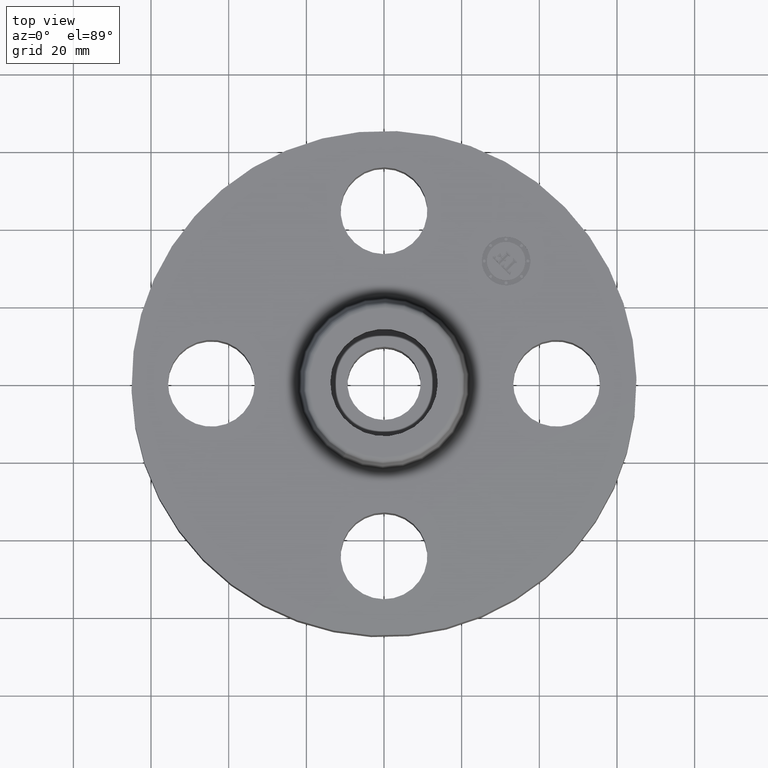
[diagram: clean part render]
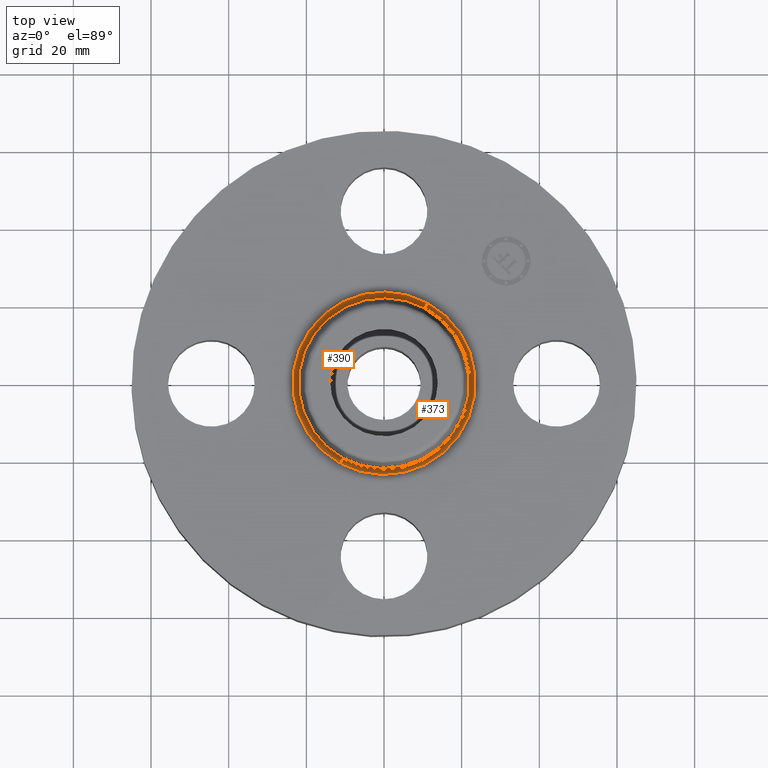
[diagram: same view with one multi-face feature highlighted, each face labeled with its STEP entity id]
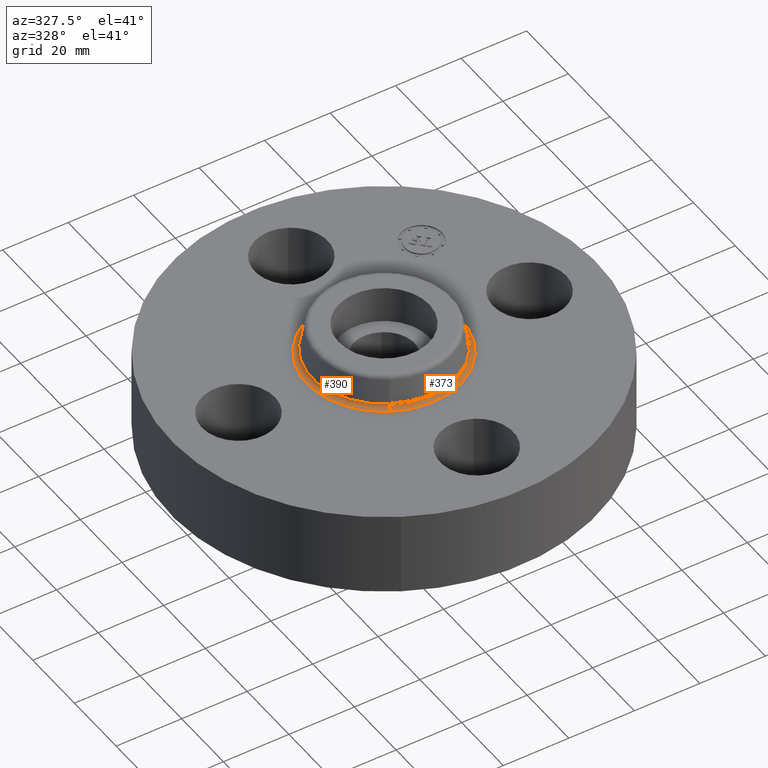
[diagram: same view with one multi-face feature highlighted, each face labeled with its STEP entity id]
A machine part, top view. The highlighted faces form ONE feature: a constant-radius fillet chain: 2 tangent blend faces with common blend radius 1.524 mm. The faces share edges in the B-rep.
A second angle (auxiliary view) of the same feature is appended — it is thin or edge-on in the first view.
Their STEP definitions:
[1] entity #373 (Torus):
#337=AXIS2_PLACEMENT_3D('Torus Axis2P3D',#334,#335,#336) ;
#341=AXIS2_PLACEMENT_3D('Circle Axis2P3D',#339,#340,$) ;
#350=AXIS2_PLACEMENT_3D('Circle Axis2P3D',#348,#349,$) ;
#357=AXIS2_PLACEMENT_3D('Circle Axis2P3D',#355,#356,$) ;
#364=AXIS2_PLACEMENT_3D('Circle Axis2P3D',#362,#363,$) ;
#334=CARTESIAN_POINT('Axis2P3D Location',(0.,0.,1.06)) ;
#339=CARTESIAN_POINT('Axis2P3D Location',(0.,0.,1.)) ;
#343=CARTESIAN_POINT('Vertex',(0.443634493838,0.812067493898,1.)) ;
#345=CARTESIAN_POINT('Vertex',(-0.443634493838,-0.812067493898,1.)) ;
#348=CARTESIAN_POINT('Axis2P3D Location',(0.443634493838,0.812067493898,1.06)) ;
#352=CARTESIAN_POINT('Vertex',(0.415305974593,0.760212487246,1.04958110934)) ;
#355=CARTESIAN_POINT('Axis2P3D Location',(0.,0.,1.04958110934)) ;
#359=CARTESIAN_POINT('Vertex',(-0.415305974593,-0.760212487246,1.04958110934)) ;
#362=CARTESIAN_POINT('Axis2P3D Location',(-0.443634493838,-0.812067493898,1.06)) ;
#335=DIRECTION('Axis2P3D Direction',(0.,0.,-0.0393700787402)) ;
#336=DIRECTION('Axis2P3D XDirection',(-0.0188750212049,-0.0345504945626,0.)) ;
#340=DIRECTION('Axis2P3D Direction',(0.,0.,-0.0393700787402)) ;
#349=DIRECTION('Axis2P3D Direction',(-0.0345504945626,0.0188750212049,0.)) ;
#356=DIRECTION('Axis2P3D Direction',(0.,0.,-0.0393700787402)) ;
#363=DIRECTION('Axis2P3D Direction',(0.0345504945626,-0.0188750212049,0.)) ;
#368=ORIENTED_EDGE('',*,*,#347,.F.) ;
#369=ORIENTED_EDGE('',*,*,#354,.T.) ;
#370=ORIENTED_EDGE('',*,*,#361,.T.) ;
#371=ORIENTED_EDGE('',*,*,#366,.F.) ;
#373=ADVANCED_FACE('PartBody',(#372),#338,.F.) ;
#342=CIRCLE('generated circle',#341,0.925345977874) ;
#351=CIRCLE('generated circle',#350,0.0600000000002) ;
#358=CIRCLE('generated circle',#357,0.866257512693) ;
#365=CIRCLE('generated circle',#364,0.0600000000002) ;
#338=TOROIDAL_SURFACE('homeo Torus',#337,0.925345977874,0.0600000000002) ;
#347=EDGE_CURVE('',#344,#346,#342,.T.) ;
#354=EDGE_CURVE('',#344,#353,#351,.T.) ;
#361=EDGE_CURVE('',#353,#360,#358,.T.) ;
#366=EDGE_CURVE('',#346,#360,#365,.T.) ;
#367=EDGE_LOOP('',(#368,#369,#370,#371)) ;
#372=FACE_OUTER_BOUND('',#367,.T.) ;
#344=VERTEX_POINT('',#343) ;
#346=VERTEX_POINT('',#345) ;
#353=VERTEX_POINT('',#352) ;
#360=VERTEX_POINT('',#359) ;
[2] entity #390 (Torus):
#337=AXIS2_PLACEMENT_3D('Torus Axis2P3D',#334,#335,#336) ;
#350=AXIS2_PLACEMENT_3D('Circle Axis2P3D',#348,#349,$) ;
#364=AXIS2_PLACEMENT_3D('Circle Axis2P3D',#362,#363,$) ;
#376=AXIS2_PLACEMENT_3D('Circle Axis2P3D',#374,#375,$) ;
#381=AXIS2_PLACEMENT_3D('Circle Axis2P3D',#379,#380,$) ;
#334=CARTESIAN_POINT('Axis2P3D Location',(0.,0.,1.06)) ;
#343=CARTESIAN_POINT('Vertex',(0.443634493838,0.812067493898,1.)) ;
#345=CARTESIAN_POINT('Vertex',(-0.443634493838,-0.812067493898,1.)) ;
#348=CARTESIAN_POINT('Axis2P3D Location',(0.443634493838,0.812067493898,1.06)) ;
#352=CARTESIAN_POINT('Vertex',(0.415305974593,0.760212487246,1.04958110934)) ;
#359=CARTESIAN_POINT('Vertex',(-0.415305974593,-0.760212487246,1.04958110934)) ;
#362=CARTESIAN_POINT('Axis2P3D Location',(-0.443634493838,-0.812067493898,1.06)) ;
#374=CARTESIAN_POINT('Axis2P3D Location',(0.,0.,1.)) ;
#379=CARTESIAN_POINT('Axis2P3D Location',(0.,0.,1.04958110934)) ;
#335=DIRECTION('Axis2P3D Direction',(0.,0.,-0.0393700787402)) ;
#336=DIRECTION('Axis2P3D XDirection',(-0.0188750212049,-0.0345504945626,0.)) ;
#349=DIRECTION('Axis2P3D Direction',(-0.0345504945626,0.0188750212049,0.)) ;
#363=DIRECTION('Axis2P3D Direction',(0.0345504945626,-0.0188750212049,0.)) ;
#375=DIRECTION('Axis2P3D Direction',(0.,0.,-0.0393700787402)) ;
#380=DIRECTION('Axis2P3D Direction',(0.,0.,-0.0393700787402)) ;
#385=ORIENTED_EDGE('',*,*,#378,.F.) ;
#386=ORIENTED_EDGE('',*,*,#366,.T.) ;
#387=ORIENTED_EDGE('',*,*,#383,.T.) ;
#388=ORIENTED_EDGE('',*,*,#354,.F.) ;
#390=ADVANCED_FACE('PartBody',(#389),#338,.F.) ;
#351=CIRCLE('generated circle',#350,0.0600000000002) ;
#365=CIRCLE('generated circle',#364,0.0600000000002) ;
#377=CIRCLE('generated circle',#376,0.925345977874) ;
#382=CIRCLE('generated circle',#381,0.866257512693) ;
#338=TOROIDAL_SURFACE('homeo Torus',#337,0.925345977874,0.0600000000002) ;
#354=EDGE_CURVE('',#344,#353,#351,.T.) ;
#366=EDGE_CURVE('',#346,#360,#365,.T.) ;
#378=EDGE_CURVE('',#346,#344,#377,.T.) ;
#383=EDGE_CURVE('',#360,#353,#382,.T.) ;
#384=EDGE_LOOP('',(#385,#386,#387,#388)) ;
#389=FACE_OUTER_BOUND('',#384,.T.) ;
#344=VERTEX_POINT('',#343) ;
#346=VERTEX_POINT('',#345) ;
#353=VERTEX_POINT('',#352) ;
#360=VERTEX_POINT('',#359) ;